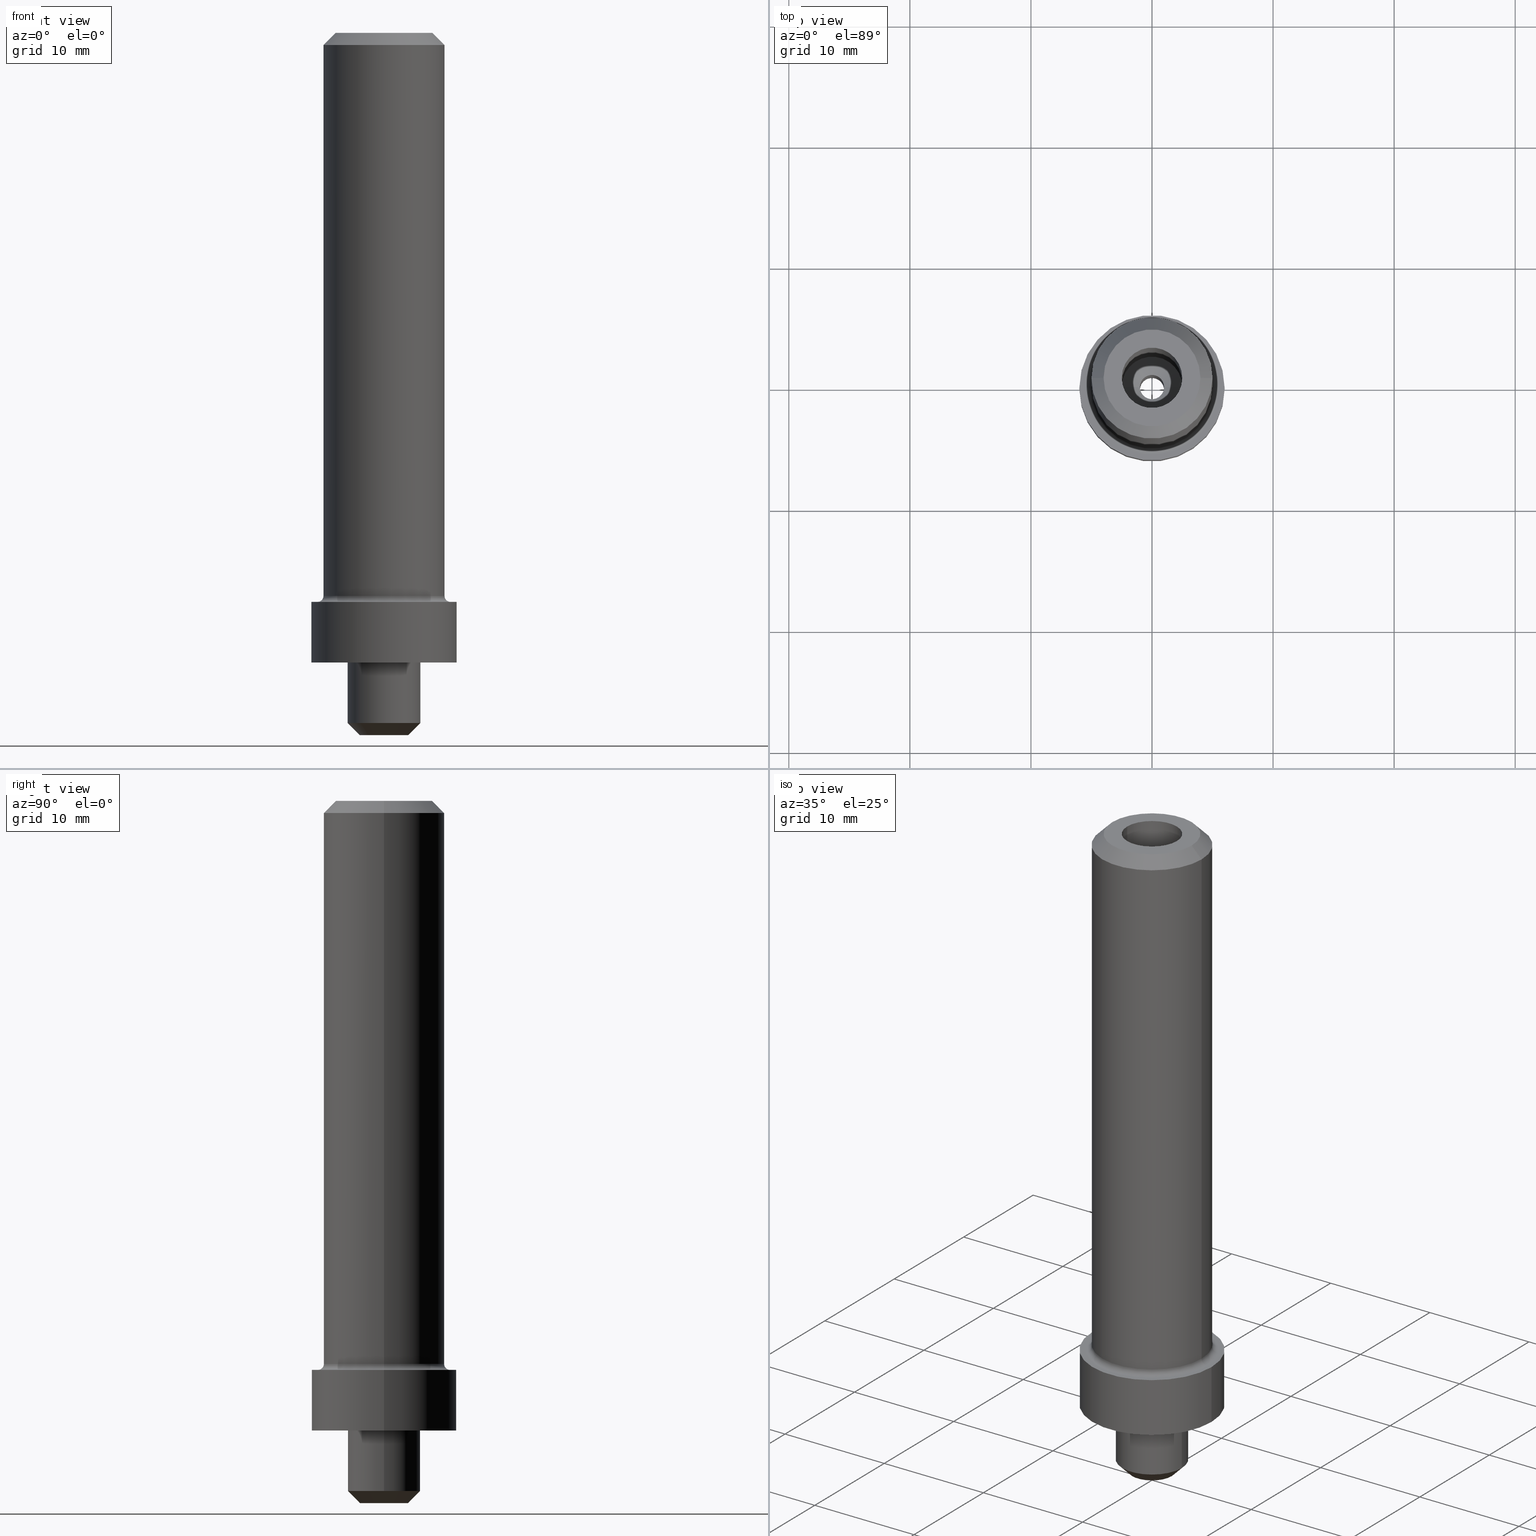
[diagram: canonical four-view strip — front | top / right | iso, engineering-drawing reading convention]
A machine part, canonical four-view strip (front | top / right | iso — engineering-drawing reading convention). The complete STEP part file that produces these views, byte-faithful:
ISO-10303-21;
HEADER;
FILE_DESCRIPTION(('no description'),'unknown implementation level');
FILE_NAME('F3731503-56A5-4533-B261-A50CCC5BEA89_export.stp','  ',('CIMSOURCE GmbH'),('CADClick - KiM GmbH - www.kimweb.de'),'unknown preprocess','ACIS','unknown authorization');
FILE_SCHEMA(('automotive_design'));
ENDSEC;
DATA;
#1=MECHANICAL_DESIGN_GEOMETRIC_PRESENTATION_REPRESENTATION(' ',(#10,#11,#12,#13,#14,#15,#16,#17,#18,#19,#20,#21,#22,#23,#24,#25,#26,#27,#28,#29,#30,#31,#32,#33,#34,#35,#36,#37,#38,#39,#40,#41,#42,#43,#44,#45,#46,#47,#48,#49,#50,#51,#52,#53,#54,#55,#56,#57,#58,#59,#60,#61,#62,#63,#64,#65,#66,#67,#68,#69,#70,#71,#72,#73,#74,#75,#76,#77,#78,#79,#80,#81,#82,#83,#84,#85,#86,#87,#88,#89,#90,#91,#92,#93,#94,#95,#96,#97,#98,#99,#100,#101,#102),#6);
#2=PRODUCT_DEFINITION_CONTEXT('',#103,'design');
#3=APPLICATION_PROTOCOL_DEFINITION('INTERNATIONAL STANDARD','automotive_design',1994,#103);
#4=PRODUCT_CATEGORY_RELATIONSHIP('NONE','NONE',#104,#105);
#5=SHAPE_DEFINITION_REPRESENTATION(#106,#107);
#6= (GEOMETRIC_REPRESENTATION_CONTEXT(3)GLOBAL_UNCERTAINTY_ASSIGNED_CONTEXT((#110))GLOBAL_UNIT_ASSIGNED_CONTEXT((#112,#113,#114))REPRESENTATION_CONTEXT('NONE','WORKSPACE'));
#10=STYLED_ITEM('',(#116),#117);
#11=STYLED_ITEM('',(#118),#119);
#12=STYLED_ITEM('',(#120),#121);
#13=STYLED_ITEM('',(#122),#123);
#14=STYLED_ITEM('',(#124),#125);
#15=STYLED_ITEM('',(#126),#127);
#16=STYLED_ITEM('',(#128),#129);
#17=STYLED_ITEM('',(#130),#131);
#18=STYLED_ITEM('',(#132),#133);
#19=STYLED_ITEM('',(#134),#135);
#20=STYLED_ITEM('',(#136),#137);
#21=STYLED_ITEM('',(#138),#139);
#22=STYLED_ITEM('',(#140),#141);
#23=STYLED_ITEM('',(#142),#143);
#24=STYLED_ITEM('',(#144),#145);
#25=STYLED_ITEM('',(#146),#147);
#26=STYLED_ITEM('',(#148),#149);
#27=STYLED_ITEM('',(#150),#151);
#28=STYLED_ITEM('',(#152),#153);
#29=STYLED_ITEM('',(#154),#155);
#30=STYLED_ITEM('',(#156),#157);
#31=STYLED_ITEM('',(#158),#159);
#32=STYLED_ITEM('',(#160),#161);
#33=STYLED_ITEM('',(#162),#163);
#34=STYLED_ITEM('',(#164),#165);
#35=STYLED_ITEM('',(#166),#167);
#36=STYLED_ITEM('',(#168),#169);
#37=STYLED_ITEM('',(#170),#171);
#38=STYLED_ITEM('',(#172),#173);
#39=STYLED_ITEM('',(#174),#175);
#40=STYLED_ITEM('',(#176),#177);
#41=STYLED_ITEM('',(#178),#179);
#42=STYLED_ITEM('',(#180),#181);
#43=STYLED_ITEM('',(#182),#183);
#44=STYLED_ITEM('',(#184),#185);
#45=STYLED_ITEM('',(#186),#187);
#46=STYLED_ITEM('',(#188),#189);
#47=STYLED_ITEM('',(#190),#191);
#48=STYLED_ITEM('',(#192),#193);
#49=STYLED_ITEM('',(#194),#195);
#50=STYLED_ITEM('',(#196),#197);
#51=STYLED_ITEM('',(#198),#199);
#52=STYLED_ITEM('',(#200),#201);
#53=STYLED_ITEM('',(#202),#203);
#54=STYLED_ITEM('',(#204),#205);
#55=STYLED_ITEM('',(#206),#207);
#56=STYLED_ITEM('',(#208),#209);
#57=STYLED_ITEM('',(#210),#211);
#58=STYLED_ITEM('',(#212),#213);
#59=STYLED_ITEM('',(#214),#215);
#60=STYLED_ITEM('',(#216),#217);
#61=STYLED_ITEM('',(#218),#219);
#62=STYLED_ITEM('',(#220),#221);
#63=STYLED_ITEM('',(#222),#223);
#64=STYLED_ITEM('',(#224),#225);
#65=STYLED_ITEM('',(#226),#227);
#66=STYLED_ITEM('',(#228),#229);
#67=STYLED_ITEM('',(#230),#231);
#68=STYLED_ITEM('',(#232),#233);
#69=STYLED_ITEM('',(#234),#235);
#70=STYLED_ITEM('',(#236),#237);
#71=STYLED_ITEM('',(#238),#239);
#72=STYLED_ITEM('',(#240),#241);
#73=STYLED_ITEM('',(#242),#243);
#74=STYLED_ITEM('',(#244),#245);
#75=STYLED_ITEM('',(#246),#247);
#76=STYLED_ITEM('',(#248),#249);
#77=STYLED_ITEM('',(#250),#251);
#78=STYLED_ITEM('',(#252),#253);
#79=STYLED_ITEM('',(#254),#255);
#80=STYLED_ITEM('',(#256),#257);
#81=STYLED_ITEM('',(#258),#259);
#82=STYLED_ITEM('',(#260),#261);
#83=STYLED_ITEM('',(#262),#263);
#84=STYLED_ITEM('',(#264),#265);
#85=STYLED_ITEM('',(#266),#267);
#86=STYLED_ITEM('',(#268),#269);
#87=STYLED_ITEM('',(#270),#271);
#88=STYLED_ITEM('',(#272),#273);
#89=STYLED_ITEM('',(#274),#275);
#90=STYLED_ITEM('',(#276),#277);
#91=STYLED_ITEM('',(#278),#279);
#92=STYLED_ITEM('',(#280),#281);
#93=STYLED_ITEM('',(#282),#283);
#94=STYLED_ITEM('',(#284),#285);
#95=STYLED_ITEM('',(#286),#287);
#96=STYLED_ITEM('',(#288),#289);
#97=STYLED_ITEM('',(#290),#291);
#98=STYLED_ITEM('',(#292),#293);
#99=STYLED_ITEM('',(#294),#295);
#100=STYLED_ITEM('',(#296),#297);
#101=STYLED_ITEM('',(#298),#299);
#102=STYLED_ITEM('',(#300),#301);
#103=APPLICATION_CONTEXT(' ');
#104=PRODUCT_CATEGORY('part','NONE');
#105=PRODUCT_RELATED_PRODUCT_CATEGORY('detail',' ',(#302));
#106=PRODUCT_DEFINITION_SHAPE('NONE','NONE',#303);
#107=ADVANCED_BREP_SHAPE_REPRESENTATION('NONE',(#205,#304),#6);
#110=UNCERTAINTY_MEASURE_WITH_UNIT(LENGTH_MEASURE(1.0E-006),#112,'','');
#112= (CONVERSION_BASED_UNIT('MILLIMETRE',#307)LENGTH_UNIT()NAMED_UNIT(#310));
#113= (NAMED_UNIT(#312)PLANE_ANGLE_UNIT()SI_UNIT($,.RADIAN.));
#114= (NAMED_UNIT(#312)SOLID_ANGLE_UNIT()SI_UNIT($,.STERADIAN.));
#116=PRESENTATION_STYLE_ASSIGNMENT((#318));
#117=EDGE_CURVE('NONE',#265,#139,#319,.T.);
#118=PRESENTATION_STYLE_ASSIGNMENT((#320));
#119=EDGE_CURVE('NONE',#247,#233,#321,.T.);
#120=PRESENTATION_STYLE_ASSIGNMENT((#322));
#121=EDGE_CURVE('NONE',#297,#187,#323,.T.);
#122=PRESENTATION_STYLE_ASSIGNMENT((#324));
#123=EDGE_CURVE('NONE',#195,#153,#325,.T.);
#124=PRESENTATION_STYLE_ASSIGNMENT((#326));
#125=VERTEX_POINT('NONE',#327);
#126=PRESENTATION_STYLE_ASSIGNMENT((#328));
#127=ADVANCED_FACE('NONE',(#329,#330),#331,.F.);
#128=PRESENTATION_STYLE_ASSIGNMENT((#332));
#129=EDGE_CURVE('NONE',#233,#291,#333,.T.);
#130=PRESENTATION_STYLE_ASSIGNMENT((#334));
#131=EDGE_CURVE('NONE',#249,#269,#335,.T.);
#132=PRESENTATION_STYLE_ASSIGNMENT((#336));
#133=EDGE_CURVE('NONE',#233,#247,#337,.T.);
#134=PRESENTATION_STYLE_ASSIGNMENT((#338));
#135=EDGE_CURVE('NONE',#155,#191,#339,.T.);
#136=PRESENTATION_STYLE_ASSIGNMENT((#340));
#137=ADVANCED_FACE('NONE',(#341),#342,.T.);
#138=PRESENTATION_STYLE_ASSIGNMENT((#343));
#139=VERTEX_POINT('NONE',#344);
#140=PRESENTATION_STYLE_ASSIGNMENT((#345));
#141=ADVANCED_FACE('NONE',(#346),#347,.T.);
#142=PRESENTATION_STYLE_ASSIGNMENT((#348));
#143=EDGE_CURVE('NONE',#269,#249,#349,.T.);
#144=PRESENTATION_STYLE_ASSIGNMENT((#350));
#145=EDGE_CURVE('NONE',#197,#169,#351,.T.);
#146=PRESENTATION_STYLE_ASSIGNMENT((#352));
#147=EDGE_CURVE('NONE',#231,#265,#353,.T.);
#148=PRESENTATION_STYLE_ASSIGNMENT((#354));
#149=ADVANCED_FACE('NONE',(#355),#356,.F.);
#150=PRESENTATION_STYLE_ASSIGNMENT((#357));
#151=EDGE_CURVE('NONE',#253,#139,#358,.T.);
#152=PRESENTATION_STYLE_ASSIGNMENT((#359));
#153=VERTEX_POINT('NONE',#360);
#154=PRESENTATION_STYLE_ASSIGNMENT((#361));
#155=VERTEX_POINT('NONE',#362);
#156=PRESENTATION_STYLE_ASSIGNMENT((#363));
#157=EDGE_CURVE('NONE',#291,#155,#364,.T.);
#158=PRESENTATION_STYLE_ASSIGNMENT((#365));
#159=ADVANCED_FACE('NONE',(#366,#367),#368,.F.);
#160=PRESENTATION_STYLE_ASSIGNMENT((#369));
#161=ADVANCED_FACE('NONE',(#370,#371),#372,.F.);
#162=PRESENTATION_STYLE_ASSIGNMENT((#373));
#163=ADVANCED_FACE('NONE',(#374),#375,.T.);
#164=PRESENTATION_STYLE_ASSIGNMENT((#376));
#165=EDGE_CURVE('NONE',#289,#195,#377,.T.);
#166=PRESENTATION_STYLE_ASSIGNMENT((#378));
#167=ADVANCED_FACE('NONE',(#379),#380,.F.);
#168=PRESENTATION_STYLE_ASSIGNMENT((#381));
#169=VERTEX_POINT('NONE',#382);
#170=PRESENTATION_STYLE_ASSIGNMENT((#383));
#171=ADVANCED_FACE('NONE',(#384),#385,.T.);
#172=PRESENTATION_STYLE_ASSIGNMENT((#386));
#173=VERTEX_POINT('NONE',#387);
#174=PRESENTATION_STYLE_ASSIGNMENT((#388));
#175=EDGE_CURVE('NONE',#191,#155,#389,.T.);
#176=PRESENTATION_STYLE_ASSIGNMENT((#390));
#177=EDGE_CURVE('NONE',#247,#181,#391,.T.);
#178=PRESENTATION_STYLE_ASSIGNMENT((#392));
#179=ADVANCED_FACE('NONE',(#393),#394,.T.);
#180=PRESENTATION_STYLE_ASSIGNMENT((#395));
#181=VERTEX_POINT('NONE',#396);
#182=PRESENTATION_STYLE_ASSIGNMENT((#397));
#183=VERTEX_POINT('NONE',#398);
#184=PRESENTATION_STYLE_ASSIGNMENT((#399));
#185=EDGE_CURVE('NONE',#231,#253,#400,.T.);
#186=PRESENTATION_STYLE_ASSIGNMENT((#401));
#187=VERTEX_POINT('NONE',#402);
#188=PRESENTATION_STYLE_ASSIGNMENT((#403));
#189=EDGE_CURVE('NONE',#283,#255,#404,.T.);
#190=PRESENTATION_STYLE_ASSIGNMENT((#405));
#191=VERTEX_POINT('NONE',#406);
#192=PRESENTATION_STYLE_ASSIGNMENT((#407));
#193=EDGE_CURVE('NONE',#291,#181,#408,.T.);
#194=PRESENTATION_STYLE_ASSIGNMENT((#409));
#195=VERTEX_POINT('NONE',#410);
#196=PRESENTATION_STYLE_ASSIGNMENT((#411));
#197=VERTEX_POINT('NONE',#412);
#198=PRESENTATION_STYLE_ASSIGNMENT((#413));
#199=ADVANCED_FACE('NONE',(#414),#415,.T.);
#200=PRESENTATION_STYLE_ASSIGNMENT((#416));
#201=EDGE_CURVE('NONE',#183,#259,#417,.T.);
#202=PRESENTATION_STYLE_ASSIGNMENT((#418));
#203=EDGE_CURVE('NONE',#181,#291,#419,.T.);
#204=PRESENTATION_STYLE_ASSIGNMENT((#420));
#205=MANIFOLD_SOLID_BREP('NONE',#421);
#206=PRESENTATION_STYLE_ASSIGNMENT((#422));
#207=ADVANCED_FACE('NONE',(#423),#424,.T.);
#208=PRESENTATION_STYLE_ASSIGNMENT((#425));
#209=ADVANCED_FACE('NONE',(#426,#427),#428,.F.);
#210=PRESENTATION_STYLE_ASSIGNMENT((#429));
#211=EDGE_CURVE('NONE',#265,#231,#430,.T.);
#212=PRESENTATION_STYLE_ASSIGNMENT((#431));
#213=VERTEX_POINT('NONE',#432);
#214=PRESENTATION_STYLE_ASSIGNMENT((#433));
#215=ADVANCED_FACE('NONE',(#434),#435,.F.);
#216=PRESENTATION_STYLE_ASSIGNMENT((#436));
#217=EDGE_CURVE('NONE',#139,#253,#437,.T.);
#218=PRESENTATION_STYLE_ASSIGNMENT((#438));
#219=ADVANCED_FACE('NONE',(#439),#440,.F.);
#220=PRESENTATION_STYLE_ASSIGNMENT((#441));
#221=EDGE_CURVE('NONE',#283,#249,#442,.T.);
#222=PRESENTATION_STYLE_ASSIGNMENT((#443));
#223=EDGE_CURVE('NONE',#187,#259,#444,.T.);
#224=PRESENTATION_STYLE_ASSIGNMENT((#445));
#225=ADVANCED_FACE('NONE',(#446),#447,.T.);
#226=PRESENTATION_STYLE_ASSIGNMENT((#448));
#227=ADVANCED_FACE('NONE',(#449),#450,.T.);
#228=PRESENTATION_STYLE_ASSIGNMENT((#451));
#229=EDGE_CURVE('NONE',#125,#249,#452,.T.);
#230=PRESENTATION_STYLE_ASSIGNMENT((#453));
#231=VERTEX_POINT('NONE',#454);
#232=PRESENTATION_STYLE_ASSIGNMENT((#455));
#233=VERTEX_POINT('NONE',#456);
#234=PRESENTATION_STYLE_ASSIGNMENT((#457));
#235=ADVANCED_FACE('NONE',(#458),#459,.F.);
#236=PRESENTATION_STYLE_ASSIGNMENT((#460));
#237=EDGE_CURVE('NONE',#289,#125,#461,.T.);
#238=PRESENTATION_STYLE_ASSIGNMENT((#462));
#239=ADVANCED_FACE('NONE',(#463),#464,.F.);
#240=PRESENTATION_STYLE_ASSIGNMENT((#465));
#241=EDGE_CURVE('NONE',#259,#265,#466,.T.);
#242=PRESENTATION_STYLE_ASSIGNMENT((#467));
#243=EDGE_CURVE('NONE',#197,#213,#468,.T.);
#244=PRESENTATION_STYLE_ASSIGNMENT((#469));
#245=ADVANCED_FACE('NONE',(#470),#471,.F.);
#246=PRESENTATION_STYLE_ASSIGNMENT((#472));
#247=VERTEX_POINT('NONE',#473);
#248=PRESENTATION_STYLE_ASSIGNMENT((#474));
#249=VERTEX_POINT('NONE',#475);
#250=PRESENTATION_STYLE_ASSIGNMENT((#476));
#251=EDGE_CURVE('NONE',#125,#289,#477,.T.);
#252=PRESENTATION_STYLE_ASSIGNMENT((#478));
#253=VERTEX_POINT('NONE',#479);
#254=PRESENTATION_STYLE_ASSIGNMENT((#480));
#255=VERTEX_POINT('NONE',#481);
#256=PRESENTATION_STYLE_ASSIGNMENT((#482));
#257=EDGE_CURVE('NONE',#153,#195,#483,.T.);
#258=PRESENTATION_STYLE_ASSIGNMENT((#484));
#259=VERTEX_POINT('NONE',#485);
#260=PRESENTATION_STYLE_ASSIGNMENT((#486));
#261=EDGE_CURVE('NONE',#181,#191,#487,.T.);
#262=PRESENTATION_STYLE_ASSIGNMENT((#488));
#263=EDGE_CURVE('NONE',#255,#269,#489,.T.);
#264=PRESENTATION_STYLE_ASSIGNMENT((#490));
#265=VERTEX_POINT('NONE',#491);
#266=PRESENTATION_STYLE_ASSIGNMENT((#492));
#267=EDGE_CURVE('NONE',#297,#183,#493,.T.);
#268=PRESENTATION_STYLE_ASSIGNMENT((#494));
#269=VERTEX_POINT('NONE',#495);
#270=PRESENTATION_STYLE_ASSIGNMENT((#496));
#271=ADVANCED_FACE('NONE',(#497),#498,.T.);
#272=PRESENTATION_STYLE_ASSIGNMENT((#499));
#273=EDGE_CURVE('NONE',#173,#213,#500,.T.);
#274=PRESENTATION_STYLE_ASSIGNMENT((#501));
#275=EDGE_CURVE('NONE',#255,#283,#502,.T.);
#276=PRESENTATION_STYLE_ASSIGNMENT((#503));
#277=EDGE_CURVE('NONE',#289,#269,#504,.T.);
#278=PRESENTATION_STYLE_ASSIGNMENT((#505));
#279=EDGE_CURVE('NONE',#169,#173,#506,.T.);
#280=PRESENTATION_STYLE_ASSIGNMENT((#507));
#281=EDGE_CURVE('NONE',#183,#231,#508,.T.);
#282=PRESENTATION_STYLE_ASSIGNMENT((#509));
#283=VERTEX_POINT('NONE',#510);
#284=PRESENTATION_STYLE_ASSIGNMENT((#511));
#285=EDGE_CURVE('NONE',#169,#197,#512,.T.);
#286=PRESENTATION_STYLE_ASSIGNMENT((#513));
#287=ADVANCED_FACE('NONE',(#514),#515,.F.);
#288=PRESENTATION_STYLE_ASSIGNMENT((#516));
#289=VERTEX_POINT('NONE',#517);
#290=PRESENTATION_STYLE_ASSIGNMENT((#518));
#291=VERTEX_POINT('NONE',#519);
#292=PRESENTATION_STYLE_ASSIGNMENT((#520));
#293=EDGE_CURVE('NONE',#187,#297,#521,.T.);
#294=PRESENTATION_STYLE_ASSIGNMENT((#522));
#295=EDGE_CURVE('NONE',#259,#183,#523,.T.);
#296=PRESENTATION_STYLE_ASSIGNMENT((#524));
#297=VERTEX_POINT('NONE',#525);
#298=PRESENTATION_STYLE_ASSIGNMENT((#526));
#299=EDGE_CURVE('NONE',#125,#153,#527,.T.);
#300=PRESENTATION_STYLE_ASSIGNMENT((#528));
#301=EDGE_CURVE('NONE',#213,#173,#529,.T.);
#302=PRODUCT('NONE','NONE','PART-NONE-DESC',(#530));
#303=PRODUCT_DEFINITION('NONE','NONE',#531,#2);
#304=AXIS2_PLACEMENT_3D('',#532,#533,#534);
#307=LENGTH_MEASURE_WITH_UNIT(LENGTH_MEASURE(1.0),#535);
#310=DIMENSIONAL_EXPONENTS(1.0,0.0,0.0,0.0,0.0,0.0,0.0);
#312=DIMENSIONAL_EXPONENTS(0.0,0.0,0.0,0.0,0.0,0.0,0.0);
#318=CURVE_STYLE('',#536,POSITIVE_LENGTH_MEASURE(1.0E-006),#537);
#319=LINE('',#538,#539);
#320=CURVE_STYLE('',#540,POSITIVE_LENGTH_MEASURE(1.0E-006),#541);
#321=CIRCLE('',#542,2.0);
#322=CURVE_STYLE('',#543,POSITIVE_LENGTH_MEASURE(1.0E-006),#544);
#323=CIRCLE('',#545,1.0);
#324=CURVE_STYLE('',#546,POSITIVE_LENGTH_MEASURE(1.0E-006),#547);
#325=CIRCLE('',#548,5.5);
#326=POINT_STYLE(' ',#549,POSITIVE_LENGTH_MEASURE(1.0E-006),#550);
#327=CARTESIAN_POINT('',(-5.0,6.12303176911189E-016,5.5));
#328=SURFACE_STYLE_USAGE(.BOTH.,#551);
#329=FACE_OUTER_BOUND('',#552,.T.);
#330=FACE_BOUND('',#553,.T.);
#331=PLANE('',#554);
#332=CURVE_STYLE('',#555,POSITIVE_LENGTH_MEASURE(1.0E-006),#556);
#333=LINE('',#557,#558);
#334=CURVE_STYLE('',#559,POSITIVE_LENGTH_MEASURE(1.0E-006),#560);
#335=CIRCLE('',#561,5.0);
#336=CURVE_STYLE('',#562,POSITIVE_LENGTH_MEASURE(1.0E-006),#563);
#337=CIRCLE('',#564,2.0);
#338=CURVE_STYLE('',#565,POSITIVE_LENGTH_MEASURE(1.0E-006),#566);
#339=CIRCLE('',#567,3.0);
#340=SURFACE_STYLE_USAGE(.BOTH.,#568);
#341=FACE_OUTER_BOUND('',#569,.T.);
#342=CYLINDRICAL_SURFACE('',#570,6.0);
#343=POINT_STYLE(' ',#571,POSITIVE_LENGTH_MEASURE(1.0E-006),#572);
#344=CARTESIAN_POINT('',(-2.5,3.06151588455594E-016,52.0));
#345=SURFACE_STYLE_USAGE(.BOTH.,#573);
#346=FACE_OUTER_BOUND('',#574,.T.);
#347=CYLINDRICAL_SURFACE('',#575,5.0);
#348=CURVE_STYLE('',#576,POSITIVE_LENGTH_MEASURE(1.0E-006),#577);
#349=CIRCLE('',#578,5.0);
#350=CURVE_STYLE('',#579,POSITIVE_LENGTH_MEASURE(1.0E-006),#580);
#351=CIRCLE('',#581,6.0);
#352=CURVE_STYLE('',#582,POSITIVE_LENGTH_MEASURE(1.0E-006),#583);
#353=CIRCLE('',#584,2.5);
#354=SURFACE_STYLE_USAGE(.BOTH.,#585);
#355=FACE_OUTER_BOUND('',#586,.T.);
#356=CONICAL_SURFACE('',#587,2.5,1.22173047639603);
#357=CURVE_STYLE('',#588,POSITIVE_LENGTH_MEASURE(1.0E-006),#589);
#358=CIRCLE('',#590,2.5);
#359=POINT_STYLE(' ',#591,POSITIVE_LENGTH_MEASURE(1.0E-006),#592);
#360=CARTESIAN_POINT('',(-5.5,6.73533494602308E-016,5.0));
#361=POINT_STYLE(' ',#593,POSITIVE_LENGTH_MEASURE(1.0E-006),#594);
#362=CARTESIAN_POINT('',(3.0,0.0,0.0));
#363=CURVE_STYLE('',#595,POSITIVE_LENGTH_MEASURE(1.0E-006),#596);
#364=LINE('',#597,#598);
#365=SURFACE_STYLE_USAGE(.BOTH.,#599);
#366=FACE_OUTER_BOUND('',#600,.T.);
#367=FACE_BOUND('',#601,.T.);
#368=PLANE('',#602);
#369=SURFACE_STYLE_USAGE(.BOTH.,#603);
#370=FACE_OUTER_BOUND('',#604,.T.);
#371=FACE_BOUND('',#605,.T.);
#372=PLANE('',#606);
#373=SURFACE_STYLE_USAGE(.BOTH.,#607);
#374=FACE_OUTER_BOUND('',#608,.T.);
#375=CYLINDRICAL_SURFACE('',#609,6.0);
#376=CURVE_STYLE('',#610,POSITIVE_LENGTH_MEASURE(1.0E-006),#611);
#377=CIRCLE('',#612,0.5);
#378=SURFACE_STYLE_USAGE(.BOTH.,#613);
#379=FACE_OUTER_BOUND('',#614,.T.);
#380=TOROIDAL_SURFACE('',#615,5.5,0.5);
#381=POINT_STYLE(' ',#616,POSITIVE_LENGTH_MEASURE(1.0E-006),#617);
#382=CARTESIAN_POINT('',(6.0,0.0,0.0));
#383=SURFACE_STYLE_USAGE(.BOTH.,#618);
#384=FACE_OUTER_BOUND('',#619,.T.);
#385=CYLINDRICAL_SURFACE('',#620,3.0);
#386=POINT_STYLE(' ',#621,POSITIVE_LENGTH_MEASURE(1.0E-006),#622);
#387=CARTESIAN_POINT('',(6.0,0.0,5.0));
#388=CURVE_STYLE('',#623,POSITIVE_LENGTH_MEASURE(1.0E-006),#624);
#389=CIRCLE('',#625,3.0);
#390=CURVE_STYLE('',#626,POSITIVE_LENGTH_MEASURE(1.0E-006),#627);
#391=LINE('',#628,#629);
#392=SURFACE_STYLE_USAGE(.BOTH.,#630);
#393=FACE_OUTER_BOUND('',#631,.T.);
#394=CONICAL_SURFACE('',#632,2.0,0.785398163397454);
#395=POINT_STYLE(' ',#633,POSITIVE_LENGTH_MEASURE(1.0E-006),#634);
#396=CARTESIAN_POINT('',(-3.0,3.67381906146713E-016,-5.00000000000001));
#397=POINT_STYLE(' ',#635,POSITIVE_LENGTH_MEASURE(1.0E-006),#636);
#398=CARTESIAN_POINT('',(1.0,0.0,8.45404464860068));
#399=CURVE_STYLE('',#637,POSITIVE_LENGTH_MEASURE(1.0E-006),#638);
#400=LINE('',#639,#640);
#401=POINT_STYLE(' ',#641,POSITIVE_LENGTH_MEASURE(1.0E-006),#642);
#402=CARTESIAN_POINT('',(-1.0,1.22460635382238E-016,-6.0));
#403=CURVE_STYLE('',#643,POSITIVE_LENGTH_MEASURE(1.0E-006),#644);
#404=CIRCLE('',#645,4.0);
#405=POINT_STYLE(' ',#646,POSITIVE_LENGTH_MEASURE(1.0E-006),#647);
#406=CARTESIAN_POINT('',(-3.0,3.67381906146713E-016,0.0));
#407=CURVE_STYLE('',#648,POSITIVE_LENGTH_MEASURE(1.0E-006),#649);
#408=CIRCLE('',#650,3.0);
#409=POINT_STYLE(' ',#651,POSITIVE_LENGTH_MEASURE(1.0E-006),#652);
#410=CARTESIAN_POINT('',(5.5,0.0,5.0));
#411=POINT_STYLE(' ',#653,POSITIVE_LENGTH_MEASURE(1.0E-006),#654);
#412=CARTESIAN_POINT('',(-6.0,7.34763812293426E-016,0.0));
#413=SURFACE_STYLE_USAGE(.BOTH.,#655);
#414=FACE_OUTER_BOUND('',#656,.T.);
#415=CYLINDRICAL_SURFACE('',#657,5.0);
#416=CURVE_STYLE('',#658,POSITIVE_LENGTH_MEASURE(1.0E-006),#659);
#417=CIRCLE('',#660,1.0);
#418=CURVE_STYLE('',#661,POSITIVE_LENGTH_MEASURE(1.0E-006),#662);
#419=CIRCLE('',#663,3.0);
#420=SURFACE_STYLE_USAGE(.BOTH.,#664);
#421=CLOSED_SHELL('',(#225,#167,#199,#235,#149,#215,#271,#207,#163,#137,#159,#171,#179,#161,#239,#287,#219,#127,#141,#245,#209,#227));
#422=SURFACE_STYLE_USAGE(.BOTH.,#665);
#423=FACE_OUTER_BOUND('',#666,.T.);
#424=CYLINDRICAL_SURFACE('',#667,3.0);
#425=SURFACE_STYLE_USAGE(.BOTH.,#668);
#426=FACE_OUTER_BOUND('',#669,.T.);
#427=FACE_BOUND('',#670,.T.);
#428=PLANE('',#671);
#429=CURVE_STYLE('',#672,POSITIVE_LENGTH_MEASURE(1.0E-006),#673);
#430=CIRCLE('',#674,2.5);
#431=POINT_STYLE(' ',#675,POSITIVE_LENGTH_MEASURE(1.0E-006),#676);
#432=CARTESIAN_POINT('',(-6.0,7.34763812293426E-016,5.0));
#433=SURFACE_STYLE_USAGE(.BOTH.,#677);
#434=FACE_OUTER_BOUND('',#678,.T.);
#435=CYLINDRICAL_SURFACE('',#679,1.0);
#436=CURVE_STYLE('',#680,POSITIVE_LENGTH_MEASURE(1.0E-006),#681);
#437=CIRCLE('',#682,2.5);
#438=SURFACE_STYLE_USAGE(.BOTH.,#683);
#439=FACE_OUTER_BOUND('',#684,.T.);
#440=CYLINDRICAL_SURFACE('',#685,2.5);
#441=CURVE_STYLE('',#686,POSITIVE_LENGTH_MEASURE(1.0E-006),#687);
#442=LINE('',#688,#689);
#443=CURVE_STYLE('',#690,POSITIVE_LENGTH_MEASURE(1.0E-006),#691);
#444=LINE('',#692,#693);
#445=SURFACE_STYLE_USAGE(.BOTH.,#694);
#446=FACE_OUTER_BOUND('',#695,.T.);
#447=CONICAL_SURFACE('',#696,4.0,0.785398163397446);
#448=SURFACE_STYLE_USAGE(.BOTH.,#697);
#449=FACE_OUTER_BOUND('',#698,.T.);
#450=CONICAL_SURFACE('',#699,4.0,0.785398163397446);
#451=CURVE_STYLE('',#700,POSITIVE_LENGTH_MEASURE(1.0E-006),#701);
#452=LINE('',#702,#703);
#453=POINT_STYLE(' ',#704,POSITIVE_LENGTH_MEASURE(1.0E-006),#705);
#454=CARTESIAN_POINT('',(2.5,0.0,8.99999999999998));
#455=POINT_STYLE(' ',#706,POSITIVE_LENGTH_MEASURE(1.0E-006),#707);
#456=CARTESIAN_POINT('',(2.0,0.0,-6.0));
#457=SURFACE_STYLE_USAGE(.BOTH.,#708);
#458=FACE_OUTER_BOUND('',#709,.T.);
#459=CYLINDRICAL_SURFACE('',#710,2.5);
#460=CURVE_STYLE('',#711,POSITIVE_LENGTH_MEASURE(1.0E-006),#712);
#461=CIRCLE('',#713,5.0);
#462=SURFACE_STYLE_USAGE(.BOTH.,#714);
#463=FACE_OUTER_BOUND('',#715,.T.);
#464=CYLINDRICAL_SURFACE('',#716,1.0);
#465=CURVE_STYLE('',#717,POSITIVE_LENGTH_MEASURE(1.0E-006),#718);
#466=LINE('',#719,#720);
#467=CURVE_STYLE('',#721,POSITIVE_LENGTH_MEASURE(1.0E-006),#722);
#468=LINE('',#723,#724);
#469=SURFACE_STYLE_USAGE(.BOTH.,#725);
#470=FACE_OUTER_BOUND('',#726,.T.);
#471=TOROIDAL_SURFACE('',#727,5.5,0.5);
#472=POINT_STYLE(' ',#728,POSITIVE_LENGTH_MEASURE(1.0E-006),#729);
#473=CARTESIAN_POINT('',(-2.0,3.06151588455594E-016,-6.0));
#474=POINT_STYLE(' ',#730,POSITIVE_LENGTH_MEASURE(1.0E-006),#731);
#475=CARTESIAN_POINT('',(-5.0,6.12303176911188E-016,51.0));
#476=CURVE_STYLE('',#732,POSITIVE_LENGTH_MEASURE(1.0E-006),#733);
#477=CIRCLE('',#734,5.0);
#478=POINT_STYLE(' ',#735,POSITIVE_LENGTH_MEASURE(1.0E-006),#736);
#479=CARTESIAN_POINT('',(2.5,0.0,52.0));
#480=POINT_STYLE(' ',#737,POSITIVE_LENGTH_MEASURE(1.0E-006),#738);
#481=CARTESIAN_POINT('',(4.0,5.51072859220069E-016,52.0));
#482=CURVE_STYLE('',#739,POSITIVE_LENGTH_MEASURE(1.0E-006),#740);
#483=CIRCLE('',#741,5.5);
#484=POINT_STYLE(' ',#742,POSITIVE_LENGTH_MEASURE(1.0E-006),#743);
#485=CARTESIAN_POINT('',(-1.0,1.22460635382238E-016,8.45404464860068));
#486=CURVE_STYLE('',#744,POSITIVE_LENGTH_MEASURE(1.0E-006),#745);
#487=LINE('',#746,#747);
#488=CURVE_STYLE('',#748,POSITIVE_LENGTH_MEASURE(1.0E-006),#749);
#489=LINE('',#750,#751);
#490=POINT_STYLE(' ',#752,POSITIVE_LENGTH_MEASURE(1.0E-006),#753);
#491=CARTESIAN_POINT('',(-2.5,3.06151588455594E-016,8.99999999999998));
#492=CURVE_STYLE('',#754,POSITIVE_LENGTH_MEASURE(1.0E-006),#755);
#493=LINE('',#756,#757);
#494=POINT_STYLE(' ',#758,POSITIVE_LENGTH_MEASURE(1.0E-006),#759);
#495=CARTESIAN_POINT('',(5.0,0.0,51.0));
#496=SURFACE_STYLE_USAGE(.BOTH.,#760);
#497=FACE_OUTER_BOUND('',#761,.T.);
#498=CONICAL_SURFACE('',#762,2.0,0.785398163397454);
#499=CURVE_STYLE('',#763,POSITIVE_LENGTH_MEASURE(1.0E-006),#764);
#500=CIRCLE('',#765,6.0);
#501=CURVE_STYLE('',#766,POSITIVE_LENGTH_MEASURE(1.0E-006),#767);
#502=CIRCLE('',#768,4.0);
#503=CURVE_STYLE('',#769,POSITIVE_LENGTH_MEASURE(1.0E-006),#770);
#504=LINE('',#771,#772);
#505=CURVE_STYLE('',#773,POSITIVE_LENGTH_MEASURE(1.0E-006),#774);
#506=LINE('',#775,#776);
#507=CURVE_STYLE('',#777,POSITIVE_LENGTH_MEASURE(1.0E-006),#778);
#508=LINE('',#779,#780);
#509=POINT_STYLE(' ',#781,POSITIVE_LENGTH_MEASURE(1.0E-006),#782);
#510=CARTESIAN_POINT('',(-4.0,0.0,52.0));
#511=CURVE_STYLE('',#783,POSITIVE_LENGTH_MEASURE(1.0E-006),#784);
#512=CIRCLE('',#785,6.0);
#513=SURFACE_STYLE_USAGE(.BOTH.,#786);
#514=FACE_OUTER_BOUND('',#787,.T.);
#515=CONICAL_SURFACE('',#788,2.5,1.22173047639603);
#516=POINT_STYLE(' ',#789,POSITIVE_LENGTH_MEASURE(1.0E-006),#790);
#517=CARTESIAN_POINT('',(5.0,0.0,5.5));
#518=POINT_STYLE(' ',#791,POSITIVE_LENGTH_MEASURE(1.0E-006),#792);
#519=CARTESIAN_POINT('',(3.0,0.0,-5.00000000000001));
#520=CURVE_STYLE('',#793,POSITIVE_LENGTH_MEASURE(1.0E-006),#794);
#521=CIRCLE('',#795,1.0);
#522=CURVE_STYLE('',#796,POSITIVE_LENGTH_MEASURE(1.0E-006),#797);
#523=CIRCLE('',#798,1.0);
#524=POINT_STYLE(' ',#799,POSITIVE_LENGTH_MEASURE(1.0E-006),#800);
#525=CARTESIAN_POINT('',(1.0,0.0,-6.0));
#526=CURVE_STYLE('',#801,POSITIVE_LENGTH_MEASURE(1.0E-006),#802);
#527=CIRCLE('',#803,0.5);
#528=CURVE_STYLE('',#804,POSITIVE_LENGTH_MEASURE(1.0E-006),#805);
#529=CIRCLE('',#806,6.0);
#530=PRODUCT_CONTEXT('',#103,'mechanical');
#531=PRODUCT_DEFINITION_FORMATION_WITH_SPECIFIED_SOURCE(' ','NONE',#302,.NOT_KNOWN.);
#532=CARTESIAN_POINT('',(0.0,0.0,0.0));
#533=DIRECTION('',(0.0,0.0,1.0));
#534=DIRECTION('',(1.0,0.0,0.0));
#535= (NAMED_UNIT(#310)LENGTH_UNIT()SI_UNIT(.MILLI.,.METRE.));
#536=DRAUGHTING_PRE_DEFINED_CURVE_FONT('continuous');
#537=COLOUR_RGB('',0.752941191196442,0.752941191196442,0.752941191196442);
#538=CARTESIAN_POINT('',(-2.5,3.06151588455594E-016,44.3839792060492));
#539=VECTOR('',#808,1000.0);
#540=DRAUGHTING_PRE_DEFINED_CURVE_FONT('continuous');
#541=COLOUR_RGB('',0.752941191196442,0.752941191196442,0.752941191196442);
#542=AXIS2_PLACEMENT_3D('',#809,#810,#811);
#543=DRAUGHTING_PRE_DEFINED_CURVE_FONT('continuous');
#544=COLOUR_RGB('',0.752941191196442,0.752941191196442,0.752941191196442);
#545=AXIS2_PLACEMENT_3D('',#812,#813,#814);
#546=DRAUGHTING_PRE_DEFINED_CURVE_FONT('continuous');
#547=COLOUR_RGB('',0.752941191196442,0.752941191196442,0.752941191196442);
#548=AXIS2_PLACEMENT_3D('',#815,#816,#817);
#549=PRE_DEFINED_MARKER('');
#550=COLOUR_RGB('',0.752941191196442,0.752941191196442,0.752941191196442);
#551=SURFACE_SIDE_STYLE('',(#818));
#552=EDGE_LOOP('',(#819,#820));
#553=EDGE_LOOP('',(#821,#822));
#554=AXIS2_PLACEMENT_3D('',#823,#824,#825);
#555=DRAUGHTING_PRE_DEFINED_CURVE_FONT('continuous');
#556=COLOUR_RGB('',0.752941191196442,0.752941191196442,0.752941191196442);
#557=CARTESIAN_POINT('',(2.0,0.0,-6.0));
#558=VECTOR('',#826,1000.0);
#559=DRAUGHTING_PRE_DEFINED_CURVE_FONT('continuous');
#560=COLOUR_RGB('',0.752941191196442,0.752941191196442,0.752941191196442);
#561=AXIS2_PLACEMENT_3D('',#827,#828,#829);
#562=DRAUGHTING_PRE_DEFINED_CURVE_FONT('continuous');
#563=COLOUR_RGB('',0.752941191196442,0.752941191196442,0.752941191196442);
#564=AXIS2_PLACEMENT_3D('',#830,#831,#832);
#565=DRAUGHTING_PRE_DEFINED_CURVE_FONT('continuous');
#566=COLOUR_RGB('',0.752941191196442,0.752941191196442,0.752941191196442);
#567=AXIS2_PLACEMENT_3D('',#833,#834,#835);
#568=SURFACE_SIDE_STYLE('',(#836));
#569=EDGE_LOOP('',(#837,#838,#839,#840));
#570=AXIS2_PLACEMENT_3D('',#841,#842,#843);
#571=PRE_DEFINED_MARKER('');
#572=COLOUR_RGB('',0.752941191196442,0.752941191196442,0.752941191196442);
#573=SURFACE_SIDE_STYLE('',(#844));
#574=EDGE_LOOP('',(#845,#846,#847,#848));
#575=AXIS2_PLACEMENT_3D('',#849,#850,#851);
#576=DRAUGHTING_PRE_DEFINED_CURVE_FONT('continuous');
#577=COLOUR_RGB('',0.752941191196442,0.752941191196442,0.752941191196442);
#578=AXIS2_PLACEMENT_3D('',#852,#853,#854);
#579=DRAUGHTING_PRE_DEFINED_CURVE_FONT('continuous');
#580=COLOUR_RGB('',0.752941191196442,0.752941191196442,0.752941191196442);
#581=AXIS2_PLACEMENT_3D('',#855,#856,#857);
#582=DRAUGHTING_PRE_DEFINED_CURVE_FONT('continuous');
#583=COLOUR_RGB('',0.752941191196442,0.752941191196442,0.752941191196442);
#584=AXIS2_PLACEMENT_3D('',#858,#859,#860);
#585=SURFACE_SIDE_STYLE('',(#861));
#586=EDGE_LOOP('',(#862,#863,#864,#865));
#587=AXIS2_PLACEMENT_3D('',#866,#867,#868);
#588=DRAUGHTING_PRE_DEFINED_CURVE_FONT('continuous');
#589=COLOUR_RGB('',0.752941191196442,0.752941191196442,0.752941191196442);
#590=AXIS2_PLACEMENT_3D('',#869,#870,#871);
#591=PRE_DEFINED_MARKER('');
#592=COLOUR_RGB('',0.752941191196442,0.752941191196442,0.752941191196442);
#593=PRE_DEFINED_MARKER('');
#594=COLOUR_RGB('',0.752941191196442,0.752941191196442,0.752941191196442);
#595=DRAUGHTING_PRE_DEFINED_CURVE_FONT('continuous');
#596=COLOUR_RGB('',0.752941191196442,0.752941191196442,0.752941191196442);
#597=CARTESIAN_POINT('',(3.0,0.0,44.3839792060492));
#598=VECTOR('',#872,1000.0);
#599=SURFACE_SIDE_STYLE('',(#873));
#600=EDGE_LOOP('',(#874,#875));
#601=EDGE_LOOP('',(#876,#877));
#602=AXIS2_PLACEMENT_3D('',#878,#879,#880);
#603=SURFACE_SIDE_STYLE('',(#881));
#604=EDGE_LOOP('',(#882,#883));
#605=EDGE_LOOP('',(#884,#885));
#606=AXIS2_PLACEMENT_3D('',#886,#887,#888);
#607=SURFACE_SIDE_STYLE('',(#889));
#608=EDGE_LOOP('',(#890,#891,#892,#893));
#609=AXIS2_PLACEMENT_3D('',#894,#895,#896);
#610=DRAUGHTING_PRE_DEFINED_CURVE_FONT('continuous');
#611=COLOUR_RGB('',0.752941191196442,0.752941191196442,0.752941191196442);
#612=AXIS2_PLACEMENT_3D('',#897,#898,#899);
#613=SURFACE_SIDE_STYLE('',(#900));
#614=EDGE_LOOP('',(#901,#902,#903,#904));
#615=AXIS2_PLACEMENT_3D('',#905,#906,#907);
#616=PRE_DEFINED_MARKER('');
#617=COLOUR_RGB('',0.752941191196442,0.752941191196442,0.752941191196442);
#618=SURFACE_SIDE_STYLE('',(#908));
#619=EDGE_LOOP('',(#909,#910,#911,#912));
#620=AXIS2_PLACEMENT_3D('',#913,#914,#915);
#621=PRE_DEFINED_MARKER('');
#622=COLOUR_RGB('',0.752941191196442,0.752941191196442,0.752941191196442);
#623=DRAUGHTING_PRE_DEFINED_CURVE_FONT('continuous');
#624=COLOUR_RGB('',0.752941191196442,0.752941191196442,0.752941191196442);
#625=AXIS2_PLACEMENT_3D('',#916,#917,#918);
#626=DRAUGHTING_PRE_DEFINED_CURVE_FONT('continuous');
#627=COLOUR_RGB('',0.752941191196442,0.752941191196442,0.752941191196442);
#628=CARTESIAN_POINT('',(-2.0,2.44921270764476E-016,-6.0));
#629=VECTOR('',#919,1000.0);
#630=SURFACE_SIDE_STYLE('',(#920));
#631=EDGE_LOOP('',(#921,#922,#923,#924));
#632=AXIS2_PLACEMENT_3D('',#925,#926,#927);
#633=PRE_DEFINED_MARKER('');
#634=COLOUR_RGB('',0.752941191196442,0.752941191196442,0.752941191196442);
#635=PRE_DEFINED_MARKER('');
#636=COLOUR_RGB('',0.752941191196442,0.752941191196442,0.752941191196442);
#637=DRAUGHTING_PRE_DEFINED_CURVE_FONT('continuous');
#638=COLOUR_RGB('',0.752941191196442,0.752941191196442,0.752941191196442);
#639=CARTESIAN_POINT('',(2.5,0.0,44.3839792060492));
#640=VECTOR('',#928,1000.0);
#641=PRE_DEFINED_MARKER('');
#642=COLOUR_RGB('',0.752941191196442,0.752941191196442,0.752941191196442);
#643=DRAUGHTING_PRE_DEFINED_CURVE_FONT('continuous');
#644=COLOUR_RGB('',0.752941191196442,0.752941191196442,0.752941191196442);
#645=AXIS2_PLACEMENT_3D('',#929,#930,#931);
#646=PRE_DEFINED_MARKER('');
#647=COLOUR_RGB('',0.752941191196442,0.752941191196442,0.752941191196442);
#648=DRAUGHTING_PRE_DEFINED_CURVE_FONT('continuous');
#649=COLOUR_RGB('',0.752941191196442,0.752941191196442,0.752941191196442);
#650=AXIS2_PLACEMENT_3D('',#932,#933,#934);
#651=PRE_DEFINED_MARKER('');
#652=COLOUR_RGB('',0.752941191196442,0.752941191196442,0.752941191196442);
#653=PRE_DEFINED_MARKER('');
#654=COLOUR_RGB('',0.752941191196442,0.752941191196442,0.752941191196442);
#655=SURFACE_SIDE_STYLE('',(#935));
#656=EDGE_LOOP('',(#936,#937,#938,#939));
#657=AXIS2_PLACEMENT_3D('',#940,#941,#942);
#658=DRAUGHTING_PRE_DEFINED_CURVE_FONT('continuous');
#659=COLOUR_RGB('',0.752941191196442,0.752941191196442,0.752941191196442);
#660=AXIS2_PLACEMENT_3D('',#943,#944,#945);
#661=DRAUGHTING_PRE_DEFINED_CURVE_FONT('continuous');
#662=COLOUR_RGB('',0.752941191196442,0.752941191196442,0.752941191196442);
#663=AXIS2_PLACEMENT_3D('',#946,#947,#948);
#664=SURFACE_SIDE_STYLE('',(#949));
#665=SURFACE_SIDE_STYLE('',(#950));
#666=EDGE_LOOP('',(#951,#952,#953,#954));
#667=AXIS2_PLACEMENT_3D('',#955,#956,#957);
#668=SURFACE_SIDE_STYLE('',(#958));
#669=EDGE_LOOP('',(#959,#960));
#670=EDGE_LOOP('',(#961,#962));
#671=AXIS2_PLACEMENT_3D('',#963,#964,#965);
#672=DRAUGHTING_PRE_DEFINED_CURVE_FONT('continuous');
#673=COLOUR_RGB('',0.752941191196442,0.752941191196442,0.752941191196442);
#674=AXIS2_PLACEMENT_3D('',#966,#967,#968);
#675=PRE_DEFINED_MARKER('');
#676=COLOUR_RGB('',0.752941191196442,0.752941191196442,0.752941191196442);
#677=SURFACE_SIDE_STYLE('',(#969));
#678=EDGE_LOOP('',(#970,#971,#972,#973));
#679=AXIS2_PLACEMENT_3D('',#974,#975,#976);
#680=DRAUGHTING_PRE_DEFINED_CURVE_FONT('continuous');
#681=COLOUR_RGB('',0.752941191196442,0.752941191196442,0.752941191196442);
#682=AXIS2_PLACEMENT_3D('',#977,#978,#979);
#683=SURFACE_SIDE_STYLE('',(#980));
#684=EDGE_LOOP('',(#981,#982,#983,#984));
#685=AXIS2_PLACEMENT_3D('',#985,#986,#987);
#686=DRAUGHTING_PRE_DEFINED_CURVE_FONT('continuous');
#687=COLOUR_RGB('',0.752941191196442,0.752941191196442,0.752941191196442);
#688=CARTESIAN_POINT('',(-4.0,0.0,52.0));
#689=VECTOR('',#988,1000.0);
#690=DRAUGHTING_PRE_DEFINED_CURVE_FONT('continuous');
#691=COLOUR_RGB('',0.752941191196442,0.752941191196442,0.752941191196442);
#692=CARTESIAN_POINT('',(-1.0,1.22460635382238E-016,44.3839792060492));
#693=VECTOR('',#989,1000.0);
#694=SURFACE_SIDE_STYLE('',(#990));
#695=EDGE_LOOP('',(#991,#992,#993,#994));
#696=AXIS2_PLACEMENT_3D('',#995,#996,#997);
#697=SURFACE_SIDE_STYLE('',(#998));
#698=EDGE_LOOP('',(#999,#1000,#1001,#1002));
#699=AXIS2_PLACEMENT_3D('',#1003,#1004,#1005);
#700=DRAUGHTING_PRE_DEFINED_CURVE_FONT('continuous');
#701=COLOUR_RGB('',0.752941191196442,0.752941191196442,0.752941191196442);
#702=CARTESIAN_POINT('',(-5.0,6.12303176911188E-016,44.3839792060492));
#703=VECTOR('',#1006,1000.0);
#704=PRE_DEFINED_MARKER('');
#705=COLOUR_RGB('',0.752941191196442,0.752941191196442,0.752941191196442);
#706=PRE_DEFINED_MARKER('');
#707=COLOUR_RGB('',0.752941191196442,0.752941191196442,0.752941191196442);
#708=SURFACE_SIDE_STYLE('',(#1007));
#709=EDGE_LOOP('',(#1008,#1009,#1010,#1011));
#710=AXIS2_PLACEMENT_3D('',#1012,#1013,#1014);
#711=DRAUGHTING_PRE_DEFINED_CURVE_FONT('continuous');
#712=COLOUR_RGB('',0.752941191196442,0.752941191196442,0.752941191196442);
#713=AXIS2_PLACEMENT_3D('',#1015,#1016,#1017);
#714=SURFACE_SIDE_STYLE('',(#1018));
#715=EDGE_LOOP('',(#1019,#1020,#1021,#1022));
#716=AXIS2_PLACEMENT_3D('',#1023,#1024,#1025);
#717=DRAUGHTING_PRE_DEFINED_CURVE_FONT('continuous');
#718=COLOUR_RGB('',0.752941191196442,0.752941191196442,0.752941191196442);
#719=CARTESIAN_POINT('',(-2.5,3.06151588455594E-016,8.99999999999998));
#720=VECTOR('',#1026,1000.0);
#721=DRAUGHTING_PRE_DEFINED_CURVE_FONT('continuous');
#722=COLOUR_RGB('',0.752941191196442,0.752941191196442,0.752941191196442);
#723=CARTESIAN_POINT('',(-6.0,7.34763812293426E-016,44.3839792060492));
#724=VECTOR('',#1027,1000.0);
#725=SURFACE_SIDE_STYLE('',(#1028));
#726=EDGE_LOOP('',(#1029,#1030,#1031,#1032));
#727=AXIS2_PLACEMENT_3D('',#1033,#1034,#1035);
#728=PRE_DEFINED_MARKER('');
#729=COLOUR_RGB('',0.752941191196442,0.752941191196442,0.752941191196442);
#730=PRE_DEFINED_MARKER('');
#731=COLOUR_RGB('',0.752941191196442,0.752941191196442,0.752941191196442);
#732=DRAUGHTING_PRE_DEFINED_CURVE_FONT('continuous');
#733=COLOUR_RGB('',0.752941191196442,0.752941191196442,0.752941191196442);
#734=AXIS2_PLACEMENT_3D('',#1036,#1037,#1038);
#735=PRE_DEFINED_MARKER('');
#736=COLOUR_RGB('',0.752941191196442,0.752941191196442,0.752941191196442);
#737=PRE_DEFINED_MARKER('');
#738=COLOUR_RGB('',0.752941191196442,0.752941191196442,0.752941191196442);
#739=DRAUGHTING_PRE_DEFINED_CURVE_FONT('continuous');
#740=COLOUR_RGB('',0.752941191196442,0.752941191196442,0.752941191196442);
#741=AXIS2_PLACEMENT_3D('',#1039,#1040,#1041);
#742=PRE_DEFINED_MARKER('');
#743=COLOUR_RGB('',0.752941191196442,0.752941191196442,0.752941191196442);
#744=DRAUGHTING_PRE_DEFINED_CURVE_FONT('continuous');
#745=COLOUR_RGB('',0.752941191196442,0.752941191196442,0.752941191196442);
#746=CARTESIAN_POINT('',(-3.0,3.67381906146713E-016,44.3839792060492));
#747=VECTOR('',#1042,1000.0);
#748=DRAUGHTING_PRE_DEFINED_CURVE_FONT('continuous');
#749=COLOUR_RGB('',0.752941191196442,0.752941191196442,0.752941191196442);
#750=CARTESIAN_POINT('',(4.0,4.8984254152895E-016,52.0));
#751=VECTOR('',#1043,1000.0);
#752=PRE_DEFINED_MARKER('');
#753=COLOUR_RGB('',0.752941191196442,0.752941191196442,0.752941191196442);
#754=DRAUGHTING_PRE_DEFINED_CURVE_FONT('continuous');
#755=COLOUR_RGB('',0.752941191196442,0.752941191196442,0.752941191196442);
#756=CARTESIAN_POINT('',(1.0,0.0,44.3839792060492));
#757=VECTOR('',#1044,1000.0);
#758=PRE_DEFINED_MARKER('');
#759=COLOUR_RGB('',0.752941191196442,0.752941191196442,0.752941191196442);
#760=SURFACE_SIDE_STYLE('',(#1045));
#761=EDGE_LOOP('',(#1046,#1047,#1048,#1049));
#762=AXIS2_PLACEMENT_3D('',#1050,#1051,#1052);
#763=DRAUGHTING_PRE_DEFINED_CURVE_FONT('continuous');
#764=COLOUR_RGB('',0.752941191196442,0.752941191196442,0.752941191196442);
#765=AXIS2_PLACEMENT_3D('',#1053,#1054,#1055);
#766=DRAUGHTING_PRE_DEFINED_CURVE_FONT('continuous');
#767=COLOUR_RGB('',0.752941191196442,0.752941191196442,0.752941191196442);
#768=AXIS2_PLACEMENT_3D('',#1056,#1057,#1058);
#769=DRAUGHTING_PRE_DEFINED_CURVE_FONT('continuous');
#770=COLOUR_RGB('',0.752941191196442,0.752941191196442,0.752941191196442);
#771=CARTESIAN_POINT('',(5.0,0.0,44.3839792060492));
#772=VECTOR('',#1059,1000.0);
#773=DRAUGHTING_PRE_DEFINED_CURVE_FONT('continuous');
#774=COLOUR_RGB('',0.752941191196442,0.752941191196442,0.752941191196442);
#775=CARTESIAN_POINT('',(6.0,0.0,44.3839792060492));
#776=VECTOR('',#1060,1000.0);
#777=DRAUGHTING_PRE_DEFINED_CURVE_FONT('continuous');
#778=COLOUR_RGB('',0.752941191196442,0.752941191196442,0.752941191196442);
#779=CARTESIAN_POINT('',(2.5,0.0,8.99999999999998));
#780=VECTOR('',#1061,1000.0);
#781=PRE_DEFINED_MARKER('');
#782=COLOUR_RGB('',0.752941191196442,0.752941191196442,0.752941191196442);
#783=DRAUGHTING_PRE_DEFINED_CURVE_FONT('continuous');
#784=COLOUR_RGB('',0.752941191196442,0.752941191196442,0.752941191196442);
#785=AXIS2_PLACEMENT_3D('',#1062,#1063,#1064);
#786=SURFACE_SIDE_STYLE('',(#1065));
#787=EDGE_LOOP('',(#1066,#1067,#1068,#1069));
#788=AXIS2_PLACEMENT_3D('',#1070,#1071,#1072);
#789=PRE_DEFINED_MARKER('');
#790=COLOUR_RGB('',0.752941191196442,0.752941191196442,0.752941191196442);
#791=PRE_DEFINED_MARKER('');
#792=COLOUR_RGB('',0.752941191196442,0.752941191196442,0.752941191196442);
#793=DRAUGHTING_PRE_DEFINED_CURVE_FONT('continuous');
#794=COLOUR_RGB('',0.752941191196442,0.752941191196442,0.752941191196442);
#795=AXIS2_PLACEMENT_3D('',#1073,#1074,#1075);
#796=DRAUGHTING_PRE_DEFINED_CURVE_FONT('continuous');
#797=COLOUR_RGB('',0.752941191196442,0.752941191196442,0.752941191196442);
#798=AXIS2_PLACEMENT_3D('',#1076,#1077,#1078);
#799=PRE_DEFINED_MARKER('');
#800=COLOUR_RGB('',0.752941191196442,0.752941191196442,0.752941191196442);
#801=DRAUGHTING_PRE_DEFINED_CURVE_FONT('continuous');
#802=COLOUR_RGB('',0.752941191196442,0.752941191196442,0.752941191196442);
#803=AXIS2_PLACEMENT_3D('',#1079,#1080,#1081);
#804=DRAUGHTING_PRE_DEFINED_CURVE_FONT('continuous');
#805=COLOUR_RGB('',0.752941191196442,0.752941191196442,0.752941191196442);
#806=AXIS2_PLACEMENT_3D('',#1082,#1083,#1084);
#808=DIRECTION('',(-0.0,0.0,1.0));
#809=CARTESIAN_POINT('',(0.0,0.0,-6.0));
#810=DIRECTION('',(0.0,0.0,1.0));
#811=DIRECTION('',(1.0,0.0,0.0));
#812=CARTESIAN_POINT('',(0.0,0.0,-6.0));
#813=DIRECTION('',(0.0,0.0,1.0));
#814=DIRECTION('',(1.0,0.0,0.0));
#815=CARTESIAN_POINT('',(0.0,0.0,5.0));
#816=DIRECTION('',(0.0,0.0,1.0));
#817=DIRECTION('',(1.0,0.0,0.0));
#818=SURFACE_STYLE_FILL_AREA(#1085);
#819=ORIENTED_EDGE('',*,*,#189,.T.);
#820=ORIENTED_EDGE('',*,*,#275,.T.);
#821=ORIENTED_EDGE('',*,*,#151,.F.);
#822=ORIENTED_EDGE('',*,*,#217,.F.);
#823=CARTESIAN_POINT('',(0.0,5.0,52.0));
#824=DIRECTION('',(0.0,0.0,-1.0));
#825=DIRECTION('',(0.0,1.0,0.0));
#826=DIRECTION('',(0.707106781186552,0.0,0.707106781186543));
#827=CARTESIAN_POINT('',(0.0,0.0,51.0));
#828=DIRECTION('',(0.0,0.0,-1.0));
#829=DIRECTION('',(-1.0,0.0,0.0));
#830=CARTESIAN_POINT('',(0.0,0.0,-6.0));
#831=DIRECTION('',(0.0,0.0,1.0));
#832=DIRECTION('',(1.0,0.0,0.0));
#833=CARTESIAN_POINT('',(0.0,0.0,0.0));
#834=DIRECTION('',(0.0,0.0,1.0));
#835=DIRECTION('',(1.0,0.0,0.0));
#836=SURFACE_STYLE_FILL_AREA(#1086);
#837=ORIENTED_EDGE('',*,*,#243,.F.);
#838=ORIENTED_EDGE('',*,*,#145,.T.);
#839=ORIENTED_EDGE('',*,*,#279,.T.);
#840=ORIENTED_EDGE('',*,*,#301,.F.);
#841=CARTESIAN_POINT('',(0.0,0.0,44.3839792060492));
#842=DIRECTION('',(-0.0,-0.0,1.0));
#843=DIRECTION('',(1.0,0.0,0.0));
#844=SURFACE_STYLE_FILL_AREA(#1087);
#845=ORIENTED_EDGE('',*,*,#229,.F.);
#846=ORIENTED_EDGE('',*,*,#251,.T.);
#847=ORIENTED_EDGE('',*,*,#277,.T.);
#848=ORIENTED_EDGE('',*,*,#143,.T.);
#849=CARTESIAN_POINT('',(0.0,0.0,44.3839792060492));
#850=DIRECTION('',(-0.0,-0.0,1.0));
#851=DIRECTION('',(1.0,0.0,0.0));
#852=CARTESIAN_POINT('',(0.0,0.0,51.0));
#853=DIRECTION('',(0.0,0.0,-1.0));
#854=DIRECTION('',(-1.0,0.0,0.0));
#855=CARTESIAN_POINT('',(0.0,0.0,0.0));
#856=DIRECTION('',(0.0,0.0,1.0));
#857=DIRECTION('',(1.0,0.0,0.0));
#858=CARTESIAN_POINT('',(0.0,0.0,8.99999999999998));
#859=DIRECTION('',(0.0,0.0,1.0));
#860=DIRECTION('',(1.0,0.0,0.0));
#861=SURFACE_STYLE_FILL_AREA(#1088);
#862=ORIENTED_EDGE('',*,*,#295,.F.);
#863=ORIENTED_EDGE('',*,*,#241,.T.);
#864=ORIENTED_EDGE('',*,*,#211,.T.);
#865=ORIENTED_EDGE('',*,*,#281,.F.);
#866=CARTESIAN_POINT('',(0.0,0.0,8.99999999999998));
#867=DIRECTION('',(-0.0,-0.0,1.0));
#868=DIRECTION('',(1.0,0.0,0.0));
#869=CARTESIAN_POINT('',(0.0,0.0,52.0));
#870=DIRECTION('',(0.0,0.0,1.0));
#871=DIRECTION('',(1.0,0.0,0.0));
#872=DIRECTION('',(-0.0,0.0,1.0));
#873=SURFACE_STYLE_FILL_AREA(#1089);
#874=ORIENTED_EDGE('',*,*,#285,.F.);
#875=ORIENTED_EDGE('',*,*,#145,.F.);
#876=ORIENTED_EDGE('',*,*,#135,.T.);
#877=ORIENTED_EDGE('',*,*,#175,.T.);
#878=CARTESIAN_POINT('',(0.0,3.0,0.0));
#879=DIRECTION('',(0.0,0.0,1.0));
#880=DIRECTION('',(1.0,0.0,0.0));
#881=SURFACE_STYLE_FILL_AREA(#1090);
#882=ORIENTED_EDGE('',*,*,#133,.F.);
#883=ORIENTED_EDGE('',*,*,#119,.F.);
#884=ORIENTED_EDGE('',*,*,#121,.T.);
#885=ORIENTED_EDGE('',*,*,#293,.T.);
#886=CARTESIAN_POINT('',(0.0,1.0,-6.0));
#887=DIRECTION('',(0.0,0.0,1.0));
#888=DIRECTION('',(1.0,0.0,0.0));
#889=SURFACE_STYLE_FILL_AREA(#1091);
#890=ORIENTED_EDGE('',*,*,#285,.T.);
#891=ORIENTED_EDGE('',*,*,#243,.T.);
#892=ORIENTED_EDGE('',*,*,#273,.F.);
#893=ORIENTED_EDGE('',*,*,#279,.F.);
#894=CARTESIAN_POINT('',(0.0,0.0,44.3839792060492));
#895=DIRECTION('',(-0.0,-0.0,1.0));
#896=DIRECTION('',(1.0,0.0,0.0));
#897=CARTESIAN_POINT('',(5.5,0.0,5.5));
#898=DIRECTION('',(0.0,-1.0,0.0));
#899=DIRECTION('',(-1.0,0.0,0.0));
#900=SURFACE_STYLE_FILL_AREA(#1092);
#901=ORIENTED_EDGE('',*,*,#251,.F.);
#902=ORIENTED_EDGE('',*,*,#299,.T.);
#903=ORIENTED_EDGE('',*,*,#257,.T.);
#904=ORIENTED_EDGE('',*,*,#165,.F.);
#905=CARTESIAN_POINT('',(0.0,0.0,5.5));
#906=DIRECTION('',(0.0,0.0,1.0));
#907=DIRECTION('',(1.0,0.0,0.0));
#908=SURFACE_STYLE_FILL_AREA(#1093);
#909=ORIENTED_EDGE('',*,*,#261,.F.);
#910=ORIENTED_EDGE('',*,*,#203,.T.);
#911=ORIENTED_EDGE('',*,*,#157,.T.);
#912=ORIENTED_EDGE('',*,*,#175,.F.);
#913=CARTESIAN_POINT('',(0.0,0.0,44.3839792060492));
#914=DIRECTION('',(-0.0,-0.0,1.0));
#915=DIRECTION('',(1.0,0.0,0.0));
#916=CARTESIAN_POINT('',(0.0,0.0,0.0));
#917=DIRECTION('',(0.0,0.0,1.0));
#918=DIRECTION('',(1.0,0.0,0.0));
#919=DIRECTION('',(-0.707106781186552,8.65927457071941E-017,0.707106781186543));
#920=SURFACE_STYLE_FILL_AREA(#1094);
#921=ORIENTED_EDGE('',*,*,#177,.F.);
#922=ORIENTED_EDGE('',*,*,#119,.T.);
#923=ORIENTED_EDGE('',*,*,#129,.T.);
#924=ORIENTED_EDGE('',*,*,#203,.F.);
#925=CARTESIAN_POINT('',(0.0,0.0,-6.0));
#926=DIRECTION('',(-0.0,-0.0,1.0));
#927=DIRECTION('',(1.0,0.0,0.0));
#928=DIRECTION('',(-0.0,0.0,1.0));
#929=CARTESIAN_POINT('',(0.0,0.0,52.0));
#930=DIRECTION('',(0.0,0.0,1.0));
#931=DIRECTION('',(-1.0,0.0,0.0));
#932=CARTESIAN_POINT('',(0.0,0.0,-5.00000000000001));
#933=DIRECTION('',(0.0,0.0,1.0));
#934=DIRECTION('',(1.0,0.0,0.0));
#935=SURFACE_STYLE_FILL_AREA(#1095);
#936=ORIENTED_EDGE('',*,*,#237,.T.);
#937=ORIENTED_EDGE('',*,*,#229,.T.);
#938=ORIENTED_EDGE('',*,*,#131,.T.);
#939=ORIENTED_EDGE('',*,*,#277,.F.);
#940=CARTESIAN_POINT('',(0.0,0.0,44.3839792060492));
#941=DIRECTION('',(-0.0,-0.0,1.0));
#942=DIRECTION('',(1.0,0.0,0.0));
#943=CARTESIAN_POINT('',(0.0,0.0,8.45404464860068));
#944=DIRECTION('',(0.0,0.0,1.0));
#945=DIRECTION('',(1.0,0.0,0.0));
#946=CARTESIAN_POINT('',(0.0,0.0,-5.00000000000001));
#947=DIRECTION('',(0.0,0.0,1.0));
#948=DIRECTION('',(1.0,0.0,0.0));
#949=SURFACE_STYLE_FILL_AREA(#1096);
#950=SURFACE_STYLE_FILL_AREA(#1097);
#951=ORIENTED_EDGE('',*,*,#193,.T.);
#952=ORIENTED_EDGE('',*,*,#261,.T.);
#953=ORIENTED_EDGE('',*,*,#135,.F.);
#954=ORIENTED_EDGE('',*,*,#157,.F.);
#955=CARTESIAN_POINT('',(0.0,0.0,44.3839792060492));
#956=DIRECTION('',(-0.0,-0.0,1.0));
#957=DIRECTION('',(1.0,0.0,0.0));
#958=SURFACE_STYLE_FILL_AREA(#1098);
#959=ORIENTED_EDGE('',*,*,#273,.T.);
#960=ORIENTED_EDGE('',*,*,#301,.T.);
#961=ORIENTED_EDGE('',*,*,#123,.F.);
#962=ORIENTED_EDGE('',*,*,#257,.F.);
#963=CARTESIAN_POINT('',(0.0,5.5,5.0));
#964=DIRECTION('',(0.0,0.0,-1.0));
#965=DIRECTION('',(0.0,1.0,0.0));
#966=CARTESIAN_POINT('',(0.0,0.0,8.99999999999998));
#967=DIRECTION('',(0.0,0.0,1.0));
#968=DIRECTION('',(1.0,0.0,0.0));
#969=SURFACE_STYLE_FILL_AREA(#1099);
#970=ORIENTED_EDGE('',*,*,#293,.F.);
#971=ORIENTED_EDGE('',*,*,#223,.T.);
#972=ORIENTED_EDGE('',*,*,#295,.T.);
#973=ORIENTED_EDGE('',*,*,#267,.F.);
#974=CARTESIAN_POINT('',(0.0,0.0,44.3839792060492));
#975=DIRECTION('',(-0.0,-0.0,1.0));
#976=DIRECTION('',(1.0,0.0,0.0));
#977=CARTESIAN_POINT('',(0.0,0.0,52.0));
#978=DIRECTION('',(0.0,0.0,1.0));
#979=DIRECTION('',(1.0,0.0,0.0));
#980=SURFACE_STYLE_FILL_AREA(#1100);
#981=ORIENTED_EDGE('',*,*,#117,.F.);
#982=ORIENTED_EDGE('',*,*,#147,.F.);
#983=ORIENTED_EDGE('',*,*,#185,.T.);
#984=ORIENTED_EDGE('',*,*,#151,.T.);
#985=CARTESIAN_POINT('',(0.0,0.0,44.3839792060492));
#986=DIRECTION('',(-0.0,-0.0,1.0));
#987=DIRECTION('',(1.0,0.0,0.0));
#988=DIRECTION('',(-0.707106781186546,0.0,-0.707106781186549));
#989=DIRECTION('',(-0.0,0.0,1.0));
#990=SURFACE_STYLE_FILL_AREA(#1101);
#991=ORIENTED_EDGE('',*,*,#275,.F.);
#992=ORIENTED_EDGE('',*,*,#263,.T.);
#993=ORIENTED_EDGE('',*,*,#131,.F.);
#994=ORIENTED_EDGE('',*,*,#221,.F.);
#995=CARTESIAN_POINT('',(0.0,0.0,52.0));
#996=DIRECTION('',(-0.0,-0.0,-1.0));
#997=DIRECTION('',(-1.0,0.0,0.0));
#998=SURFACE_STYLE_FILL_AREA(#1102);
#999=ORIENTED_EDGE('',*,*,#263,.F.);
#1000=ORIENTED_EDGE('',*,*,#189,.F.);
#1001=ORIENTED_EDGE('',*,*,#221,.T.);
#1002=ORIENTED_EDGE('',*,*,#143,.F.);
#1003=CARTESIAN_POINT('',(0.0,0.0,52.0));
#1004=DIRECTION('',(-0.0,-0.0,-1.0));
#1005=DIRECTION('',(-1.0,0.0,0.0));
#1006=DIRECTION('',(-0.0,0.0,1.0));
#1007=SURFACE_STYLE_FILL_AREA(#1103);
#1008=ORIENTED_EDGE('',*,*,#211,.F.);
#1009=ORIENTED_EDGE('',*,*,#117,.T.);
#1010=ORIENTED_EDGE('',*,*,#217,.T.);
#1011=ORIENTED_EDGE('',*,*,#185,.F.);
#1012=CARTESIAN_POINT('',(0.0,0.0,44.3839792060492));
#1013=DIRECTION('',(-0.0,-0.0,1.0));
#1014=DIRECTION('',(1.0,0.0,0.0));
#1015=CARTESIAN_POINT('',(0.0,0.0,5.5));
#1016=DIRECTION('',(0.0,0.0,1.0));
#1017=DIRECTION('',(1.0,0.0,0.0));
#1018=SURFACE_STYLE_FILL_AREA(#1104);
#1019=ORIENTED_EDGE('',*,*,#223,.F.);
#1020=ORIENTED_EDGE('',*,*,#121,.F.);
#1021=ORIENTED_EDGE('',*,*,#267,.T.);
#1022=ORIENTED_EDGE('',*,*,#201,.T.);
#1023=CARTESIAN_POINT('',(0.0,0.0,44.3839792060492));
#1024=DIRECTION('',(-0.0,-0.0,1.0));
#1025=DIRECTION('',(1.0,0.0,0.0));
#1026=DIRECTION('',(-0.939692620785909,1.15075355405443E-016,0.342020143325666));
#1027=DIRECTION('',(-0.0,0.0,1.0));
#1028=SURFACE_STYLE_FILL_AREA(#1105);
#1029=ORIENTED_EDGE('',*,*,#299,.F.);
#1030=ORIENTED_EDGE('',*,*,#237,.F.);
#1031=ORIENTED_EDGE('',*,*,#165,.T.);
#1032=ORIENTED_EDGE('',*,*,#123,.T.);
#1033=CARTESIAN_POINT('',(0.0,0.0,5.5));
#1034=DIRECTION('',(0.0,0.0,1.0));
#1035=DIRECTION('',(1.0,0.0,0.0));
#1036=CARTESIAN_POINT('',(0.0,0.0,5.5));
#1037=DIRECTION('',(0.0,0.0,1.0));
#1038=DIRECTION('',(1.0,0.0,0.0));
#1039=CARTESIAN_POINT('',(0.0,0.0,5.0));
#1040=DIRECTION('',(0.0,0.0,1.0));
#1041=DIRECTION('',(1.0,0.0,0.0));
#1042=DIRECTION('',(-0.0,0.0,1.0));
#1043=DIRECTION('',(0.707106781186546,8.65927457071933E-017,-0.707106781186549));
#1044=DIRECTION('',(-0.0,0.0,1.0));
#1045=SURFACE_STYLE_FILL_AREA(#1106);
#1046=ORIENTED_EDGE('',*,*,#133,.T.);
#1047=ORIENTED_EDGE('',*,*,#177,.T.);
#1048=ORIENTED_EDGE('',*,*,#193,.F.);
#1049=ORIENTED_EDGE('',*,*,#129,.F.);
#1050=CARTESIAN_POINT('',(0.0,0.0,-6.0));
#1051=DIRECTION('',(-0.0,-0.0,1.0));
#1052=DIRECTION('',(1.0,0.0,0.0));
#1053=CARTESIAN_POINT('',(0.0,0.0,5.0));
#1054=DIRECTION('',(0.0,0.0,1.0));
#1055=DIRECTION('',(1.0,0.0,0.0));
#1056=CARTESIAN_POINT('',(0.0,0.0,52.0));
#1057=DIRECTION('',(0.0,0.0,1.0));
#1058=DIRECTION('',(-1.0,0.0,0.0));
#1059=DIRECTION('',(-0.0,0.0,1.0));
#1060=DIRECTION('',(-0.0,0.0,1.0));
#1061=DIRECTION('',(0.939692620785909,0.0,0.342020143325666));
#1062=CARTESIAN_POINT('',(0.0,0.0,0.0));
#1063=DIRECTION('',(0.0,0.0,1.0));
#1064=DIRECTION('',(1.0,0.0,0.0));
#1065=SURFACE_STYLE_FILL_AREA(#1107);
#1066=ORIENTED_EDGE('',*,*,#241,.F.);
#1067=ORIENTED_EDGE('',*,*,#201,.F.);
#1068=ORIENTED_EDGE('',*,*,#281,.T.);
#1069=ORIENTED_EDGE('',*,*,#147,.T.);
#1070=CARTESIAN_POINT('',(0.0,0.0,8.99999999999998));
#1071=DIRECTION('',(-0.0,-0.0,1.0));
#1072=DIRECTION('',(1.0,0.0,0.0));
#1073=CARTESIAN_POINT('',(0.0,0.0,-6.0));
#1074=DIRECTION('',(0.0,0.0,1.0));
#1075=DIRECTION('',(1.0,0.0,0.0));
#1076=CARTESIAN_POINT('',(0.0,0.0,8.45404464860068));
#1077=DIRECTION('',(0.0,0.0,1.0));
#1078=DIRECTION('',(1.0,0.0,0.0));
#1079=CARTESIAN_POINT('',(-5.5,6.73533494602308E-016,5.5));
#1080=DIRECTION('',(1.22460635382238E-016,1.0,0.0));
#1081=DIRECTION('',(1.0,-1.22460635382238E-016,0.0));
#1082=CARTESIAN_POINT('',(0.0,0.0,5.0));
#1083=DIRECTION('',(0.0,0.0,1.0));
#1084=DIRECTION('',(1.0,0.0,0.0));
#1085=FILL_AREA_STYLE('',(#1108));
#1086=FILL_AREA_STYLE('',(#1109));
#1087=FILL_AREA_STYLE('',(#1110));
#1088=FILL_AREA_STYLE('',(#1111));
#1089=FILL_AREA_STYLE('',(#1112));
#1090=FILL_AREA_STYLE('',(#1113));
#1091=FILL_AREA_STYLE('',(#1114));
#1092=FILL_AREA_STYLE('',(#1115));
#1093=FILL_AREA_STYLE('',(#1116));
#1094=FILL_AREA_STYLE('',(#1117));
#1095=FILL_AREA_STYLE('',(#1118));
#1096=FILL_AREA_STYLE('',(#1119));
#1097=FILL_AREA_STYLE('',(#1120));
#1098=FILL_AREA_STYLE('',(#1121));
#1099=FILL_AREA_STYLE('',(#1122));
#1100=FILL_AREA_STYLE('',(#1123));
#1101=FILL_AREA_STYLE('',(#1124));
#1102=FILL_AREA_STYLE('',(#1125));
#1103=FILL_AREA_STYLE('',(#1126));
#1104=FILL_AREA_STYLE('',(#1127));
#1105=FILL_AREA_STYLE('',(#1128));
#1106=FILL_AREA_STYLE('',(#1129));
#1107=FILL_AREA_STYLE('',(#1130));
#1108=FILL_AREA_STYLE_COLOUR('',#1131);
#1109=FILL_AREA_STYLE_COLOUR('',#1132);
#1110=FILL_AREA_STYLE_COLOUR('',#1133);
#1111=FILL_AREA_STYLE_COLOUR('',#1134);
#1112=FILL_AREA_STYLE_COLOUR('',#1135);
#1113=FILL_AREA_STYLE_COLOUR('',#1136);
#1114=FILL_AREA_STYLE_COLOUR('',#1137);
#1115=FILL_AREA_STYLE_COLOUR('',#1138);
#1116=FILL_AREA_STYLE_COLOUR('',#1139);
#1117=FILL_AREA_STYLE_COLOUR('',#1140);
#1118=FILL_AREA_STYLE_COLOUR('',#1141);
#1119=FILL_AREA_STYLE_COLOUR('',#1142);
#1120=FILL_AREA_STYLE_COLOUR('',#1143);
#1121=FILL_AREA_STYLE_COLOUR('',#1144);
#1122=FILL_AREA_STYLE_COLOUR('',#1145);
#1123=FILL_AREA_STYLE_COLOUR('',#1146);
#1124=FILL_AREA_STYLE_COLOUR('',#1147);
#1125=FILL_AREA_STYLE_COLOUR('',#1148);
#1126=FILL_AREA_STYLE_COLOUR('',#1149);
#1127=FILL_AREA_STYLE_COLOUR('',#1150);
#1128=FILL_AREA_STYLE_COLOUR('',#1151);
#1129=FILL_AREA_STYLE_COLOUR('',#1152);
#1130=FILL_AREA_STYLE_COLOUR('',#1153);
#1131=COLOUR_RGB('',0.752941191196442,0.752941191196442,0.752941191196442);
#1132=COLOUR_RGB('',0.752941191196442,0.752941191196442,0.752941191196442);
#1133=COLOUR_RGB('',0.752941191196442,0.752941191196442,0.752941191196442);
#1134=COLOUR_RGB('',0.752941191196442,0.752941191196442,0.752941191196442);
#1135=COLOUR_RGB('',0.752941191196442,0.752941191196442,0.752941191196442);
#1136=COLOUR_RGB('',0.752941191196442,0.752941191196442,0.752941191196442);
#1137=COLOUR_RGB('',0.752941191196442,0.752941191196442,0.752941191196442);
#1138=COLOUR_RGB('',0.752941191196442,0.752941191196442,0.752941191196442);
#1139=COLOUR_RGB('',0.752941191196442,0.752941191196442,0.752941191196442);
#1140=COLOUR_RGB('',0.752941191196442,0.752941191196442,0.752941191196442);
#1141=COLOUR_RGB('',0.752941191196442,0.752941191196442,0.752941191196442);
#1142=COLOUR_RGB('',0.752941191196442,0.752941191196442,0.752941191196442);
#1143=COLOUR_RGB('',0.752941191196442,0.752941191196442,0.752941191196442);
#1144=COLOUR_RGB('',0.752941191196442,0.752941191196442,0.752941191196442);
#1145=COLOUR_RGB('',0.752941191196442,0.752941191196442,0.752941191196442);
#1146=COLOUR_RGB('',0.752941191196442,0.752941191196442,0.752941191196442);
#1147=COLOUR_RGB('',0.752941191196442,0.752941191196442,0.752941191196442);
#1148=COLOUR_RGB('',0.752941191196442,0.752941191196442,0.752941191196442);
#1149=COLOUR_RGB('',0.752941191196442,0.752941191196442,0.752941191196442);
#1150=COLOUR_RGB('',0.752941191196442,0.752941191196442,0.752941191196442);
#1151=COLOUR_RGB('',0.752941191196442,0.752941191196442,0.752941191196442);
#1152=COLOUR_RGB('',0.752941191196442,0.752941191196442,0.752941191196442);
#1153=COLOUR_RGB('',0.752941191196442,0.752941191196442,0.752941191196442);
#1154=PRESENTATION_LAYER_ASSIGNMENT('NONE','',(#207,#205,#171));
#1155=AXIS2_PLACEMENT_3D('PCS',#1156,#1157,#1158);
#1156=CARTESIAN_POINT('',(0.0,0.0,52.0));
#1157=DIRECTION('',(0.0,0.0,1.0));
#1158=DIRECTION('',(1.0,0.0,0.0));
#1159=AXIS2_PLACEMENT_3D('MCS',#1160,#1161,#1162);
#1160=CARTESIAN_POINT('',(0.0,0.0,22.0));
#1161=DIRECTION('',(0.0,0.0,1.0));
#1162=DIRECTION('',(1.0,0.0,0.0));
#1163=AXIS2_PLACEMENT_3D('CSW',#1164,#1165,#1166);
#1164=CARTESIAN_POINT('',(0.0,0.0,0.0));
#1165=DIRECTION('',(0.0,0.0,1.0));
#1166=DIRECTION('',(1.0,0.0,0.0));
#1167=CONSTRUCTIVE_GEOMETRY_REPRESENTATION_RELATIONSHIP('coordinate systems',$,#107,#1168);
#1168=CONSTRUCTIVE_GEOMETRY_REPRESENTATION('coordinate systems',(#1155,#1159,#1163),#6);
ENDSEC;
END-ISO-10303-21;
